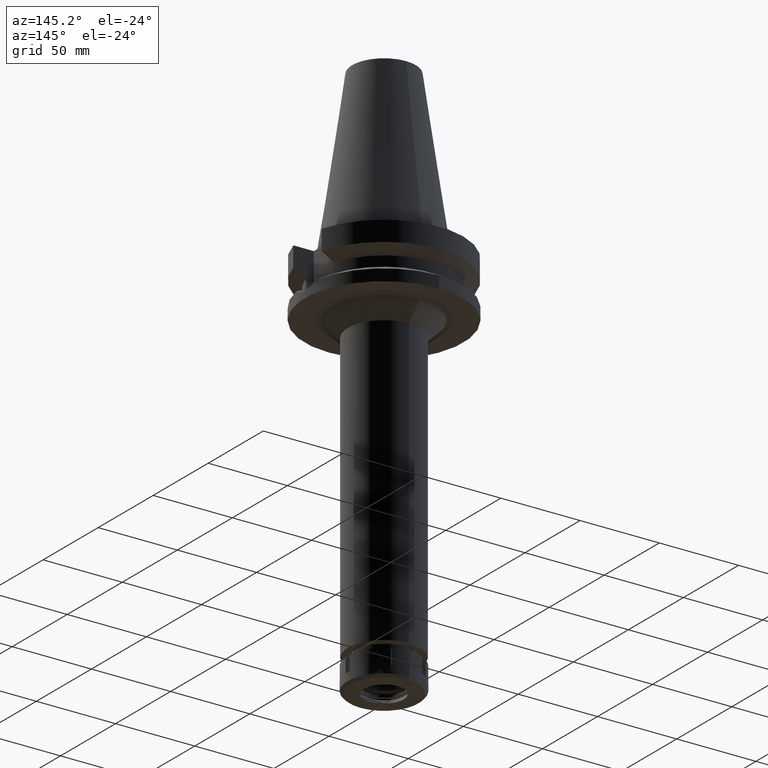
[diagram: clean part render]
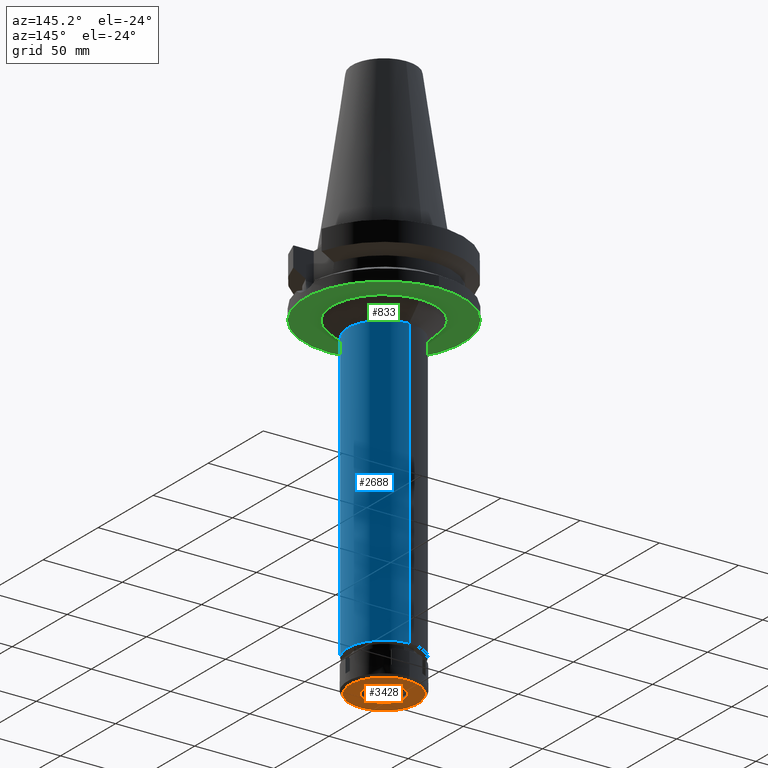
[diagram: same view with three faces highlighted in distinct colors, each labeled with its STEP entity id]
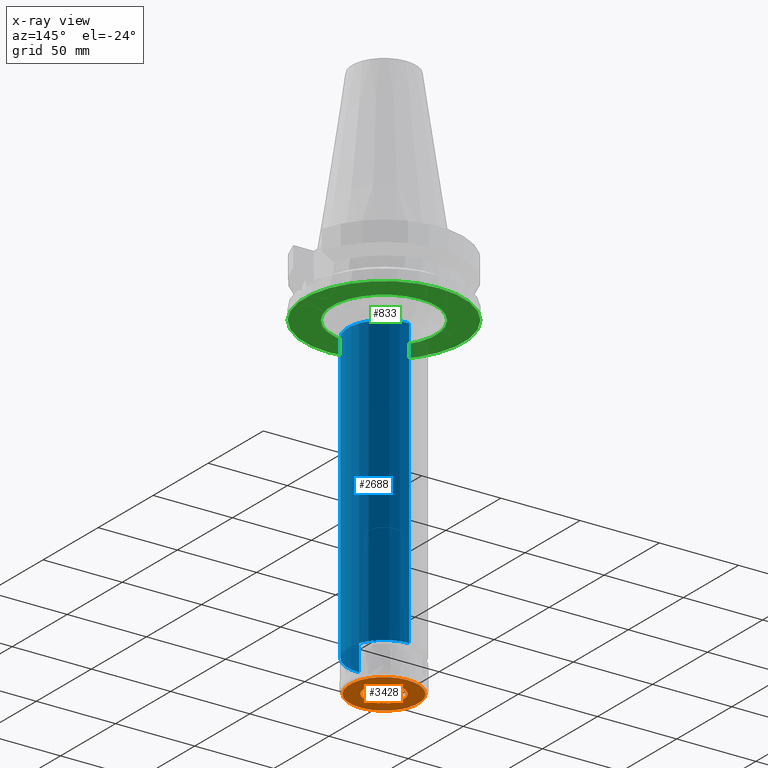
[diagram: x-ray of the same camera — body ghosted, the three highlighted faces saturated]
A machine part, auxiliary view with three faces highlighted in distinct colors.
The next image is the same camera in x-ray (body ghosted, the three faces saturated) — at least one of them is partly hidden behind the body in this view.
Their STEP definitions:

[orange] entity #3428 — the highlighted planar face has unit normal (0, 0, -1).
#183 = CARTESIAN_POINT ( 'NONE',  ( 0.0000000000000000000, 12.25000000000000000, -16.00000000000000000 ) ) ;
#255 = DIRECTION ( 'NONE',  ( 0.0000000000000000000, -1.000000000000000000, 0.0000000000000000000 ) ) ;
#306 = DIRECTION ( 'NONE',  ( 0.0000000000000000000, 0.0000000000000000000, 1.000000000000000000 ) ) ;
#356 = ORIENTED_EDGE ( 'NONE', *, *, #3542, .F. ) ;
#622 = VERTEX_POINT ( 'NONE', #1169 ) ;
#679 = AXIS2_PLACEMENT_3D ( 'NONE', #1630, #2725, #3297 ) ;
#694 = EDGE_LOOP ( 'NONE', ( #356, #3017 ) ) ;
#716 = CIRCLE ( 'NONE', #1367, 21.50000000000000000 ) ;
#825 = CARTESIAN_POINT ( 'NONE',  ( 0.0000000000000000000, 0.0000000000000000000, -16.00000000000000000 ) ) ;
#861 = DIRECTION ( 'NONE',  ( 0.0000000000000000000, -1.000000000000000000, 0.0000000000000000000 ) ) ;
#1064 = CARTESIAN_POINT ( 'NONE',  ( 0.0000000000000000000, -21.50000000000000000, -16.00000000000000000 ) ) ;
#1169 = CARTESIAN_POINT ( 'NONE',  ( 0.0000000000000000000, 21.50000000000000000, -16.00000000000000000 ) ) ;
#1224 = DIRECTION ( 'NONE',  ( 0.0000000000000000000, 0.0000000000000000000, -1.000000000000000000 ) ) ;
#1360 = FACE_BOUND ( 'NONE', #694, .T. ) ;
#1367 = AXIS2_PLACEMENT_3D ( 'NONE', #3326, #3050, #861 ) ;
#1407 = DIRECTION ( 'NONE',  ( 0.0000000000000000000, 1.000000000000000000, 0.0000000000000000000 ) ) ;
#1479 = EDGE_CURVE ( 'NONE', #1633, #622, #716, .T. ) ;
#1585 = CARTESIAN_POINT ( 'NONE',  ( 0.0000000000000000000, 0.0000000000000000000, -16.00000000000000000 ) ) ;
#1611 = CARTESIAN_POINT ( 'NONE',  ( 0.0000000000000000000, 0.0000000000000000000, -16.00000000000000000 ) ) ;
#1630 = CARTESIAN_POINT ( 'NONE',  ( 0.0000000000000000000, 0.0000000000000000000, -16.00000000000000000 ) ) ;
#1633 = VERTEX_POINT ( 'NONE', #1064 ) ;
#1646 = FACE_OUTER_BOUND ( 'NONE', #3068, .T. ) ;
#2013 = CARTESIAN_POINT ( 'NONE',  ( 0.0000000000000000000, -12.25000000000000000, -16.00000000000000000 ) ) ;
#2025 = ORIENTED_EDGE ( 'NONE', *, *, #3065, .F. ) ;
#2222 = PLANE ( 'NONE',  #3008 ) ;
#2257 = ORIENTED_EDGE ( 'NONE', *, *, #1479, .F. ) ;
#2552 = VERTEX_POINT ( 'NONE', #2013 ) ;
#2707 = DIRECTION ( 'NONE',  ( 0.0000000000000000000, -1.000000000000000000, 0.0000000000000000000 ) ) ;
#2725 = DIRECTION ( 'NONE',  ( 0.0000000000000000000, 0.0000000000000000000, -1.000000000000000000 ) ) ;
#2778 = DIRECTION ( 'NONE',  ( 0.0000000000000000000, 0.0000000000000000000, -1.000000000000000000 ) ) ;
#3008 = AXIS2_PLACEMENT_3D ( 'NONE', #825, #2778, #255 ) ;
#3017 = ORIENTED_EDGE ( 'NONE', *, *, #3363, .F. ) ;
#3050 = DIRECTION ( 'NONE',  ( 0.0000000000000000000, 0.0000000000000000000, 1.000000000000000000 ) ) ;
#3065 = EDGE_CURVE ( 'NONE', #622, #1633, #3114, .T. ) ;
#3068 = EDGE_LOOP ( 'NONE', ( #2025, #2257 ) ) ;
#3114 = CIRCLE ( 'NONE', #3176, 21.50000000000000000 ) ;
#3176 = AXIS2_PLACEMENT_3D ( 'NONE', #1585, #306, #1407 ) ;
#3182 = CIRCLE ( 'NONE', #3537, 12.25000000000000000 ) ;
#3243 = CIRCLE ( 'NONE', #679, 12.25000000000000000 ) ;
#3297 = DIRECTION ( 'NONE',  ( 0.0000000000000000000, 1.000000000000000000, 0.0000000000000000000 ) ) ;
#3326 = CARTESIAN_POINT ( 'NONE',  ( 0.0000000000000000000, 0.0000000000000000000, -16.00000000000000000 ) ) ;
#3363 = EDGE_CURVE ( 'NONE', #2552, #3382, #3182, .T. ) ;
#3382 = VERTEX_POINT ( 'NONE', #183 ) ;
#3428 = ADVANCED_FACE ( 'NONE', ( #1646, #1360 ), #2222, .T. ) ;
#3537 = AXIS2_PLACEMENT_3D ( 'NONE', #1611, #1224, #2707 ) ;
#3542 = EDGE_CURVE ( 'NONE', #3382, #2552, #3243, .T. ) ;

[blue] entity #2688 — the highlighted cylindrical surface (partial cylindrical patch) has radius 22.75 mm, axis along (0, 0, -1).
#32 = VECTOR ( 'NONE', #2621, 1000.000000000000000 ) ;
#43 = CARTESIAN_POINT ( 'NONE',  ( 0.0000000000000000000, 2.681854025452999794E-14, 118.9899999999999949 ) ) ;
#213 = VERTEX_POINT ( 'NONE', #734 ) ;
#510 = DIRECTION ( 'NONE',  ( 0.0000000000000000000, -1.000000000000000000, 0.0000000000000000000 ) ) ;
#734 = CARTESIAN_POINT ( 'NONE',  ( 0.0000000000000000000, -22.75000000000000000, -48.00000000000000000 ) ) ;
#742 = CIRCLE ( 'NONE', #3002, 22.75000000000000000 ) ;
#817 = DIRECTION ( 'NONE',  ( 0.0000000000000000000, 0.0000000000000000000, -1.000000000000000000 ) ) ;
#998 = CARTESIAN_POINT ( 'NONE',  ( 0.0000000000000000000, 22.75000000000000000, -48.00000000000000000 ) ) ;
#1141 = ORIENTED_EDGE ( 'NONE', *, *, #3046, .T. ) ;
#1159 = DIRECTION ( 'NONE',  ( 0.0000000000000000000, 0.0000000000000000000, -1.000000000000000000 ) ) ;
#1251 = ORIENTED_EDGE ( 'NONE', *, *, #3208, .T. ) ;
#1375 = VERTEX_POINT ( 'NONE', #1628 ) ;
#1430 = CYLINDRICAL_SURFACE ( 'NONE', #2545, 22.75000000000000000 ) ;
#1480 = DIRECTION ( 'NONE',  ( 0.0000000000000000000, 0.0000000000000000000, -1.000000000000000000 ) ) ;
#1628 = CARTESIAN_POINT ( 'NONE',  ( 0.0000000000000000000, 22.75000000000000000, -48.00000000000000000 ) ) ;
#1710 = LINE ( 'NONE', #1970, #2883 ) ;
#1716 = FACE_OUTER_BOUND ( 'NONE', #1804, .T. ) ;
#1773 = VERTEX_POINT ( 'NONE', #3045 ) ;
#1804 = EDGE_LOOP ( 'NONE', ( #2838, #1251, #1141, #2555 ) ) ;
#1970 = CARTESIAN_POINT ( 'NONE',  ( 0.0000000000000000000, -22.75000000000000000, -48.00000000000000000 ) ) ;
#2045 = EDGE_CURVE ( 'NONE', #1375, #1773, #3191, .T. ) ;
#2141 = CARTESIAN_POINT ( 'NONE',  ( 0.0000000000000000000, 2.681854025452999794E-14, -229.5000000000000000 ) ) ;
#2188 = CARTESIAN_POINT ( 'NONE',  ( 0.0000000000000000000, -22.75000000000000000, -229.5000000000000000 ) ) ;
#2252 = DIRECTION ( 'NONE',  ( 0.0000000000000000000, -1.000000000000000000, 0.0000000000000000000 ) ) ;
#2275 = VERTEX_POINT ( 'NONE', #2188 ) ;
#2433 = CARTESIAN_POINT ( 'NONE',  ( 0.0000000000000000000, 0.0000000000000000000, -48.00000000000000000 ) ) ;
#2545 = AXIS2_PLACEMENT_3D ( 'NONE', #43, #1159, #2252 ) ;
#2555 = ORIENTED_EDGE ( 'NONE', *, *, #2045, .F. ) ;
#2621 = DIRECTION ( 'NONE',  ( 0.0000000000000000000, 0.0000000000000000000, -1.000000000000000000 ) ) ;
#2688 = ADVANCED_FACE ( 'NONE', ( #1716 ), #1430, .T. ) ;
#2824 = AXIS2_PLACEMENT_3D ( 'NONE', #2433, #817, #3286 ) ;
#2838 = ORIENTED_EDGE ( 'NONE', *, *, #2928, .T. ) ;
#2883 = VECTOR ( 'NONE', #1480, 1000.000000000000000 ) ;
#2928 = EDGE_CURVE ( 'NONE', #1375, #213, #2943, .T. ) ;
#2943 = CIRCLE ( 'NONE', #2824, 22.75000000000000000 ) ;
#3002 = AXIS2_PLACEMENT_3D ( 'NONE', #2141, #3267, #510 ) ;
#3045 = CARTESIAN_POINT ( 'NONE',  ( 0.0000000000000000000, 22.75000000000000000, -229.5000000000000000 ) ) ;
#3046 = EDGE_CURVE ( 'NONE', #2275, #1773, #742, .T. ) ;
#3191 = LINE ( 'NONE', #998, #32 ) ;
#3208 = EDGE_CURVE ( 'NONE', #213, #2275, #1710, .T. ) ;
#3267 = DIRECTION ( 'NONE',  ( 0.0000000000000000000, 0.0000000000000000000, 1.000000000000000000 ) ) ;
#3286 = DIRECTION ( 'NONE',  ( 0.0000000000000000000, 1.000000000000000000, 0.0000000000000000000 ) ) ;

[green] entity #833 — the highlighted planar face has unit normal (0, 0, -1).
#104 = DIRECTION ( 'NONE',  ( 0.0000000000000000000, 0.0000000000000000000, -1.000000000000000000 ) ) ;
#131 = ORIENTED_EDGE ( 'NONE', *, *, #2203, .F. ) ;
#241 = DIRECTION ( 'NONE',  ( 0.0000000000000000000, 1.000000000000000000, 0.0000000000000000000 ) ) ;
#316 = AXIS2_PLACEMENT_3D ( 'NONE', #2589, #104, #1235 ) ;
#325 = CIRCLE ( 'NONE', #1774, 50.00000000000000000 ) ;
#352 = CARTESIAN_POINT ( 'NONE',  ( 0.0000000000000000000, 0.0000000000000000000, -38.00000000000000000 ) ) ;
#354 = EDGE_LOOP ( 'NONE', ( #2849, #131 ) ) ;
#376 = PLANE ( 'NONE',  #316 ) ;
#603 = CIRCLE ( 'NONE', #2799, 32.75000000000000000 ) ;
#641 = FACE_OUTER_BOUND ( 'NONE', #354, .T. ) ;
#745 = CARTESIAN_POINT ( 'NONE',  ( 0.0000000000000000000, -32.75000000000000000, -38.00000000000000000 ) ) ;
#773 = CARTESIAN_POINT ( 'NONE',  ( 0.0000000000000000000, 2.681854025452999794E-14, -38.00000000000000000 ) ) ;
#794 = CARTESIAN_POINT ( 'NONE',  ( 0.0000000000000000000, -50.00000000000000000, -38.00000000000000000 ) ) ;
#833 = ADVANCED_FACE ( 'NONE', ( #641, #3130 ), #376, .T. ) ;
#856 = DIRECTION ( 'NONE',  ( 0.0000000000000000000, 1.000000000000000000, 0.0000000000000000000 ) ) ;
#905 = CIRCLE ( 'NONE', #2747, 32.75000000000000000 ) ;
#1120 = ORIENTED_EDGE ( 'NONE', *, *, #2562, .F. ) ;
#1136 = CARTESIAN_POINT ( 'NONE',  ( 0.0000000000000000000, 0.0000000000000000000, -38.00000000000000000 ) ) ;
#1235 = DIRECTION ( 'NONE',  ( 0.0000000000000000000, -1.000000000000000000, 0.0000000000000000000 ) ) ;
#1391 = DIRECTION ( 'NONE',  ( 0.0000000000000000000, 0.0000000000000000000, -1.000000000000000000 ) ) ;
#1733 = DIRECTION ( 'NONE',  ( 0.0000000000000000000, 0.0000000000000000000, 1.000000000000000000 ) ) ;
#1774 = AXIS2_PLACEMENT_3D ( 'NONE', #773, #2711, #241 ) ;
#1849 = EDGE_CURVE ( 'NONE', #2994, #2722, #603, .T. ) ;
#1997 = CIRCLE ( 'NONE', #3165, 50.00000000000000000 ) ;
#1998 = VERTEX_POINT ( 'NONE', #2215 ) ;
#2203 = EDGE_CURVE ( 'NONE', #1998, #2216, #325, .T. ) ;
#2215 = CARTESIAN_POINT ( 'NONE',  ( 0.0000000000000000000, 50.00000000000000000, -38.00000000000000000 ) ) ;
#2216 = VERTEX_POINT ( 'NONE', #794 ) ;
#2267 = DIRECTION ( 'NONE',  ( 0.0000000000000000000, 0.0000000000000000000, -1.000000000000000000 ) ) ;
#2290 = ORIENTED_EDGE ( 'NONE', *, *, #1849, .F. ) ;
#2518 = EDGE_CURVE ( 'NONE', #2216, #1998, #1997, .T. ) ;
#2547 = DIRECTION ( 'NONE',  ( 0.0000000000000000000, -1.000000000000000000, 0.0000000000000000000 ) ) ;
#2561 = DIRECTION ( 'NONE',  ( 0.0000000000000000000, -1.000000000000000000, 0.0000000000000000000 ) ) ;
#2562 = EDGE_CURVE ( 'NONE', #2722, #2994, #905, .T. ) ;
#2589 = CARTESIAN_POINT ( 'NONE',  ( 0.0000000000000000000, 0.0000000000000000000, -38.00000000000000000 ) ) ;
#2699 = CARTESIAN_POINT ( 'NONE',  ( 0.0000000000000000000, 32.75000000000000000, -38.00000000000000000 ) ) ;
#2711 = DIRECTION ( 'NONE',  ( 0.0000000000000000000, 0.0000000000000000000, 1.000000000000000000 ) ) ;
#2722 = VERTEX_POINT ( 'NONE', #745 ) ;
#2747 = AXIS2_PLACEMENT_3D ( 'NONE', #352, #2267, #2561 ) ;
#2799 = AXIS2_PLACEMENT_3D ( 'NONE', #1136, #1391, #856 ) ;
#2849 = ORIENTED_EDGE ( 'NONE', *, *, #2518, .F. ) ;
#2994 = VERTEX_POINT ( 'NONE', #2699 ) ;
#3066 = CARTESIAN_POINT ( 'NONE',  ( 0.0000000000000000000, 2.681854025452999794E-14, -38.00000000000000000 ) ) ;
#3130 = FACE_BOUND ( 'NONE', #3256, .T. ) ;
#3165 = AXIS2_PLACEMENT_3D ( 'NONE', #3066, #1733, #2547 ) ;
#3256 = EDGE_LOOP ( 'NONE', ( #1120, #2290 ) ) ;